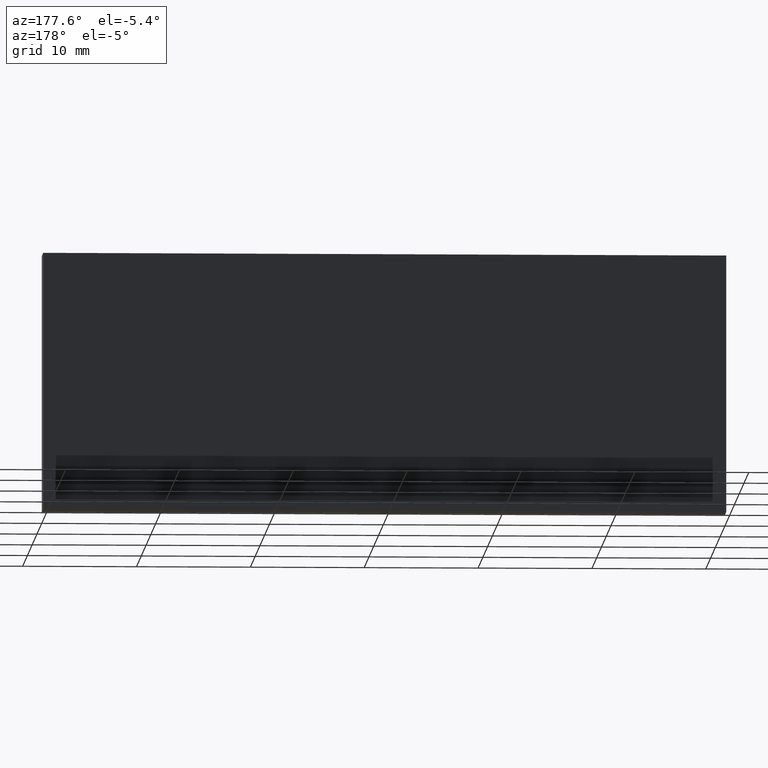
[diagram: clean part render]
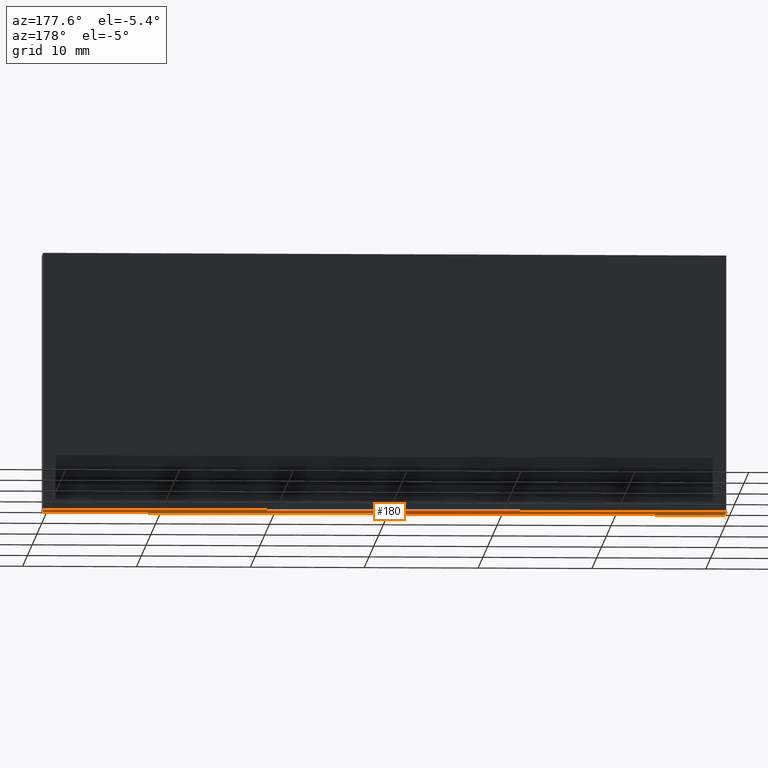
[diagram: same view with one face highlighted and labeled with its STEP entity id]
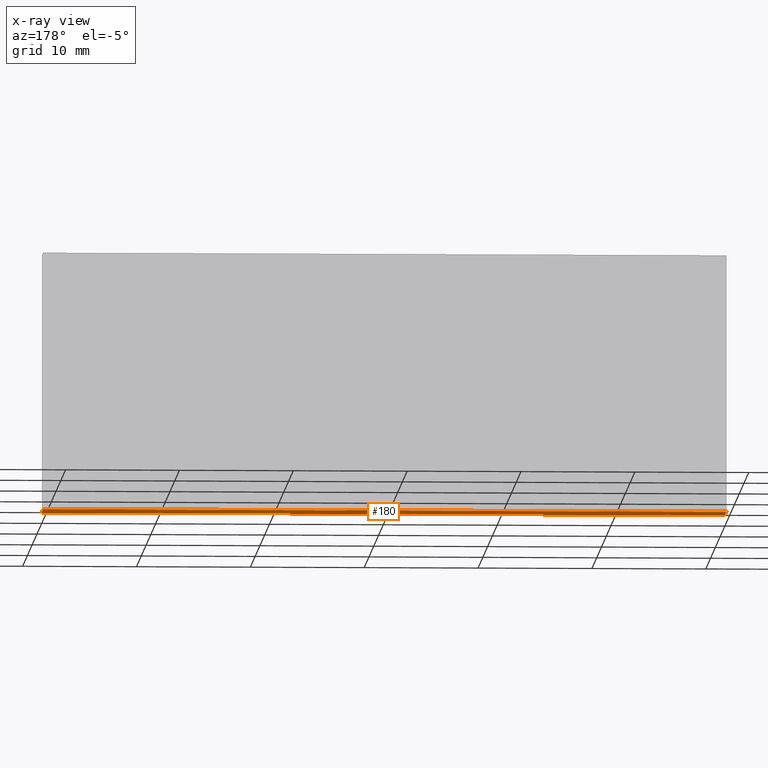
[diagram: x-ray of the same camera — body ghosted, the highlighted face saturated]
A machine part, auxiliary view. The second image highlights one B-rep face of the part: STEP entity #180.
The next image is the same camera in x-ray: the body ghosted, the highlighted face saturated — about 0% of this face is hidden behind the body in this view.
In plain terms, the highlighted planar face has unit normal (0, 0, 1).
Its self-contained STEP definition (entity closure, byte-faithful):
#3 = CARTESIAN_POINT ( 'NONE',  ( 0.0000000000000000000, 0.0000000000000000000, -11.29999999999999900 ) ) ;
#4 = CARTESIAN_POINT ( 'NONE',  ( 30.00000000000000000, 3.000000000000000000, -11.29999999999999900 ) ) ;
#5 = CARTESIAN_POINT ( 'NONE',  ( 30.00000000000000000, 0.0000000000000000000, -11.29999999999999900 ) ) ;
#6 = VERTEX_POINT ( 'NONE', #4 ) ;
#7 = VERTEX_POINT ( 'NONE', #18 ) ;
#9 = DIRECTION ( 'NONE',  ( -1.000000000000000000, -0.0000000000000000000, -0.0000000000000000000 ) ) ;
#11 = CARTESIAN_POINT ( 'NONE',  ( 30.00000000000000000, 3.000000000000000000, -11.29999999999999900 ) ) ;
#12 = DIRECTION ( 'NONE',  ( 0.0000000000000000000, -1.000000000000000000, -0.0000000000000000000 ) ) ;
#13 = CARTESIAN_POINT ( 'NONE',  ( -30.00000000000000000, 3.000000000000000000, -11.29999999999999900 ) ) ;
#18 = CARTESIAN_POINT ( 'NONE',  ( -30.00000000000000000, 3.000000000000000000, -11.29999999999999900 ) ) ;
#19 = CARTESIAN_POINT ( 'NONE',  ( -30.00000000000000000, 0.0000000000000000000, -11.29999999999999900 ) ) ;
#20 = VERTEX_POINT ( 'NONE', #5 ) ;
#21 = VERTEX_POINT ( 'NONE', #19 ) ;
#29 = ORIENTED_EDGE ( 'NONE', *, *, #157, .F. ) ;
#30 = ORIENTED_EDGE ( 'NONE', *, *, #139, .T. ) ;
#31 = EDGE_LOOP ( 'NONE', ( #60, #62, #29, #30 ) ) ;
#37 = LINE ( 'NONE', #11, #55 ) ;
#38 = VECTOR ( 'NONE', #12, 1000.000000000000000 ) ;
#55 = VECTOR ( 'NONE', #214, 1000.000000000000000 ) ;
#57 = VECTOR ( 'NONE', #9, 1000.000000000000000 ) ;
#58 = LINE ( 'NONE', #3, #57 ) ;
#59 = LINE ( 'NONE', #13, #38 ) ;
#60 = ORIENTED_EDGE ( 'NONE', *, *, #141, .F. ) ;
#62 = ORIENTED_EDGE ( 'NONE', *, *, #142, .F. ) ;
#94 = LINE ( 'NONE', #199, #95 ) ;
#95 = VECTOR ( 'NONE', #213, 1000.000000000000000 ) ;
#122 = FACE_OUTER_BOUND ( 'NONE', #31, .T. ) ;
#139 = EDGE_CURVE ( 'NONE', #20, #21, #58, .T. ) ;
#141 = EDGE_CURVE ( 'NONE', #7, #21, #59, .T. ) ;
#142 = EDGE_CURVE ( 'NONE', #6, #7, #37, .T. ) ;
#157 = EDGE_CURVE ( 'NONE', #20, #6, #94, .T. ) ;
#159 = AXIS2_PLACEMENT_3D ( 'NONE', #247, #285, #286 ) ;
#180 = ADVANCED_FACE ( 'NONE', ( #122 ), #262, .F. ) ;
#199 = CARTESIAN_POINT ( 'NONE',  ( 30.00000000000000000, 3.000000000000000000, -11.29999999999999900 ) ) ;
#213 = DIRECTION ( 'NONE',  ( -0.0000000000000000000, 1.000000000000000000, 0.0000000000000000000 ) ) ;
#214 = DIRECTION ( 'NONE',  ( -1.000000000000000000, -0.0000000000000000000, 0.0000000000000000000 ) ) ;
#247 = CARTESIAN_POINT ( 'NONE',  ( 30.00000000000000000, 3.000000000000000000, -11.29999999999999900 ) ) ;
#262 = PLANE ( 'NONE',  #159 ) ;
#285 = DIRECTION ( 'NONE',  ( 0.0000000000000000000, 0.0000000000000000000, 1.000000000000000000 ) ) ;
#286 = DIRECTION ( 'NONE',  ( 1.000000000000000000, 0.0000000000000000000, -0.0000000000000000000 ) ) ;